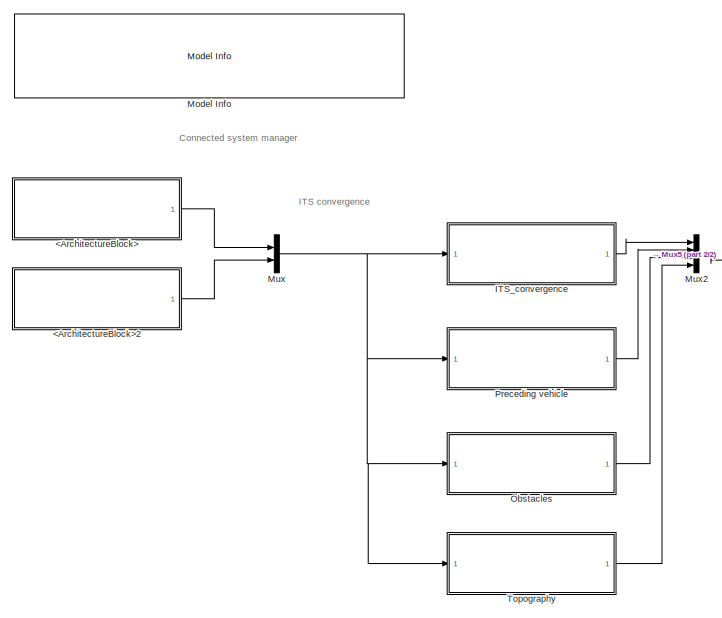
[diagram: root canvas - part 1/2, left side, full height]
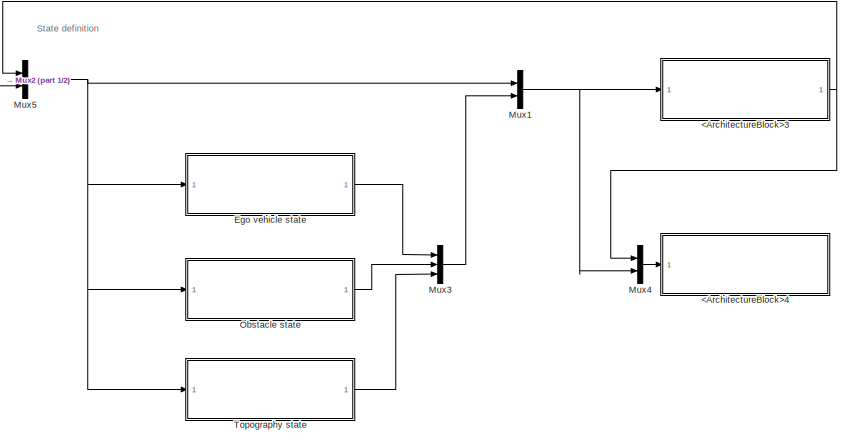
[diagram: root canvas - part 2/2, middle right region]
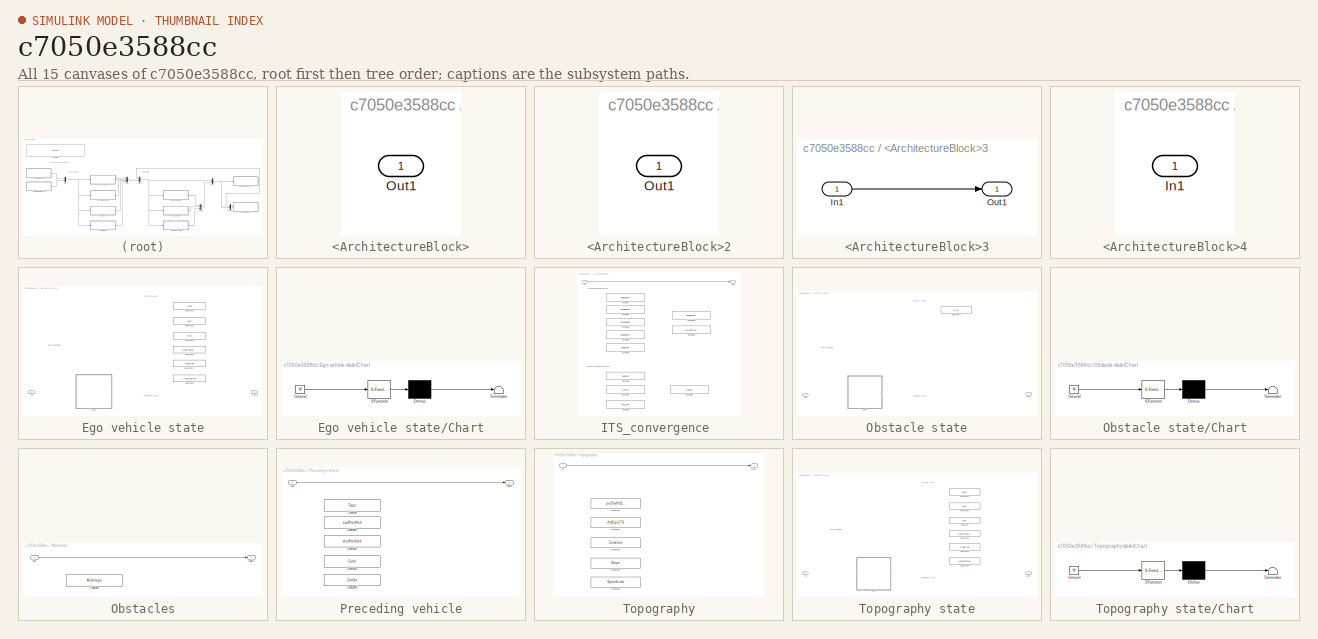
[diagram: thumbnail index - all 15 canvases of the model, root first then tree order]
MODEL slx_c7050e3588cc
KIND model
CONFIG AbsTol = auto
CONFIG EnableMultiTasking = off
CONFIG FixedStep = auto
CONFIG MaxStep = auto
CONFIG MinStep = auto
CONFIG RelTol = 1e-3
CONFIG SampleTimeConstraint = Unconstrained
CONFIG Solver = VariableStepAuto
CONFIG SolverName = VariableStepAuto
CONFIG StartTime = 0.0
CONFIG StopTime = 10.0
BLOCK [SubSystem] <ArchitectureBlock>
  Ports = [0, 1]
  RequestExecContextInheritance = off
  Variant = off
BLOCK [Outport] <ArchitectureBlock>/Out1
  IconDisplay = Port number
BLOCK [SubSystem] <ArchitectureBlock>2
  Ports = [0, 1]
  RequestExecContextInheritance = off
  Variant = off
BLOCK [Outport] <ArchitectureBlock>2/Out1
  IconDisplay = Port number
BLOCK [SubSystem] <ArchitectureBlock>3
  Ports = [1, 1]
  RequestExecContextInheritance = off
  Variant = off
BLOCK [Inport] <ArchitectureBlock>3/In1
  IconDisplay = Port number
BLOCK [Outport] <ArchitectureBlock>3/Out1
  IconDisplay = Port number
BLOCK [SubSystem] <ArchitectureBlock>4
  Ports = [1]
  RequestExecContextInheritance = off
  Variant = off
BLOCK [Inport] <ArchitectureBlock>4/In1
  IconDisplay = Port number
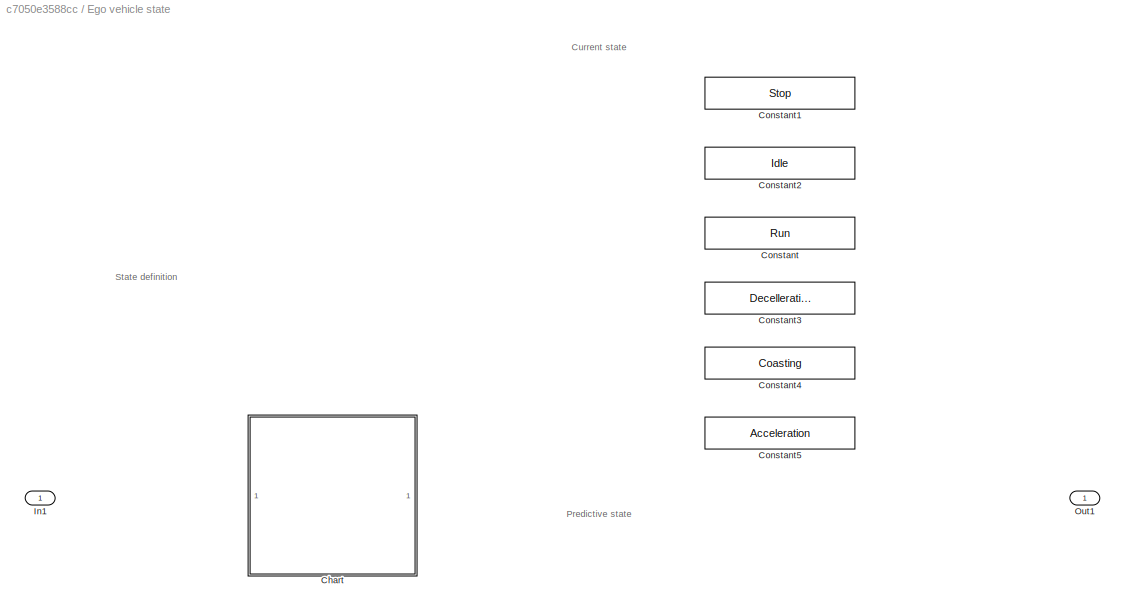
BLOCK [SubSystem] Ego vehicle state
  Ports = [1, 1]
  RequestExecContextInheritance = off
  Variant = off
BLOCK [SubSystem] Ego vehicle state/Chart
  ErrorFcn = Stateflow.Translate.translate
  PermitHierarchicalResolution = ExplicitOnly
  Ports = []
  RequestExecContextInheritance = off
  SFBlockType = Chart
  TreatAsAtomicUnit = on
  Variant = off
BLOCK [Demux] Ego vehicle state/Chart/ Demux 
  Outputs = 1
  Ports = [1, 1]
BLOCK [Ground] Ego vehicle state/Chart/ Ground 
BLOCK [S-Function] Ego vehicle state/Chart/ SFunction 
  EnableBusSupport = off
  FunctionName = sf_sfun
  PortCounts = [1 1]
  Ports = [1, 1]
  SFcnIsStateOwnerBlock = off
  SFunctionDeploymentMode = off
  Tag = Stateflow S-Function Csm_HighLvlArchitecture 3
BLOCK [Terminator] Ego vehicle state/Chart/ Terminator 
BLOCK [Constant] Ego vehicle state/Constant
  Value = Run
BLOCK [Constant] Ego vehicle state/Constant1
  Value = Stop
BLOCK [Constant] Ego vehicle state/Constant2
  Value = Idle
BLOCK [Constant] Ego vehicle state/Constant3
  Value = Decelleration
BLOCK [Constant] Ego vehicle state/Constant4
  Value = Coasting
BLOCK [Constant] Ego vehicle state/Constant5
  Value = Acceleration
BLOCK [Inport] Ego vehicle state/In1
  IconDisplay = Port number
BLOCK [Outport] Ego vehicle state/Out1
  IconDisplay = Port number
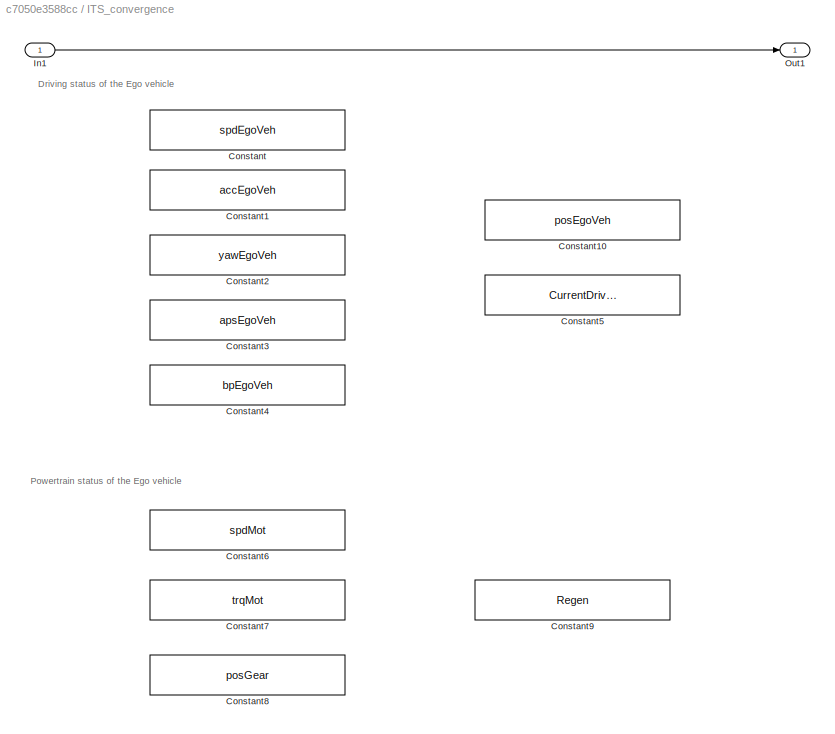
BLOCK [SubSystem] ITS_convergence 
  Ports = [1, 1]
  RequestExecContextInheritance = off
  Variant = off
BLOCK [Constant] ITS_convergence /Constant
  Value = spdEgoVeh
BLOCK [Constant] ITS_convergence /Constant1
  Value = accEgoVeh
BLOCK [Constant] ITS_convergence /Constant10
  Value = posEgoVeh
BLOCK [Constant] ITS_convergence /Constant2
  Value = yawEgoVeh
BLOCK [Constant] ITS_convergence /Constant3
  Value = apsEgoVeh
BLOCK [Constant] ITS_convergence /Constant4
  Value = bpEgoVeh
BLOCK [Constant] ITS_convergence /Constant5
  Value = CurrentDrivingLane
BLOCK [Constant] ITS_convergence /Constant6
  Value = spdMot
BLOCK [Constant] ITS_convergence /Constant7
  Value = trqMot
BLOCK [Constant] ITS_convergence /Constant8
  Value = posGear
BLOCK [Constant] ITS_convergence /Constant9
  Value = Regen
BLOCK [Inport] ITS_convergence /In1
  IconDisplay = Port number
BLOCK [Outport] ITS_convergence /Out1
  IconDisplay = Port number
BLOCK [Reference] Model Info  REF=DX_Lib/Misc. Lib/Model Info
  Ports = []
  SourceBlock = DX_Lib/Misc. Lib/Model Info
  SourceProductName = ACE Lab: DX Blockset
  SourceType = CMBlock
BLOCK [Mux] Mux
  DisplayOption = bar
  Inputs = 2
  Ports = [2, 1]
BLOCK [Mux] Mux1
  DisplayOption = bar
  Inputs = 2
  Ports = [2, 1]
BLOCK [Mux] Mux2
  DisplayOption = bar
  Ports = [4, 1]
BLOCK [Mux] Mux3
  DisplayOption = bar
  Inputs = 3
  Ports = [3, 1]
BLOCK [Mux] Mux4
  DisplayOption = bar
  Inputs = 2
  Ports = [2, 1]
BLOCK [Mux] Mux5
  DisplayOption = bar
  Inputs = 2
  Ports = [2, 1]
BLOCK [SubSystem] Obstacle state
  Ports = [1, 1]
  RequestExecContextInheritance = off
  Variant = off
BLOCK [SubSystem] Obstacle state/Chart
  ErrorFcn = Stateflow.Translate.translate
  PermitHierarchicalResolution = ExplicitOnly
  Ports = []
  RequestExecContextInheritance = off
  SFBlockType = Chart
  TreatAsAtomicUnit = on
  Variant = off
BLOCK [Demux] Obstacle state/Chart/ Demux 
  Outputs = 1
  Ports = [1, 1]
BLOCK [Ground] Obstacle state/Chart/ Ground 
BLOCK [S-Function] Obstacle state/Chart/ SFunction 
  EnableBusSupport = off
  FunctionName = sf_sfun
  PortCounts = [1 1]
  Ports = [1, 1]
  SFcnIsStateOwnerBlock = off
  SFunctionDeploymentMode = off
  Tag = Stateflow S-Function Csm_HighLvlArchitecture 1
BLOCK [Terminator] Obstacle state/Chart/ Terminator 
BLOCK [Constant] Obstacle state/Constant1
  Value = Stop
BLOCK [Inport] Obstacle state/In1
  IconDisplay = Port number
BLOCK [Outport] Obstacle state/Out1
  IconDisplay = Port number
BLOCK [SubSystem] Obstacles
  Ports = [1, 1]
  RequestExecContextInheritance = off
  Variant = off
BLOCK [Constant] Obstacles/Constant
  Value = Mobileye
BLOCK [Inport] Obstacles/In1
  IconDisplay = Port number
BLOCK [Outport] Obstacles/Out1
  IconDisplay = Port number
BLOCK [SubSystem] Preceding vehicle
  Ports = [1, 1]
  RequestExecContextInheritance = off
  Variant = off
BLOCK [Constant] Preceding vehicle/Constant
  Value = Type
BLOCK [Constant] Preceding vehicle/Constant1
  Value = spdPredVeh
BLOCK [Constant] Preceding vehicle/Constant2
  Value = distPredVeh
BLOCK [Constant] Preceding vehicle/Constant3
  Value = CutIn
BLOCK [Constant] Preceding vehicle/Constant4
  Value = CutOut
BLOCK [Inport] Preceding vehicle/In1
  IconDisplay = Port number
BLOCK [Outport] Preceding vehicle/Out1
  IconDisplay = Port number
BLOCK [SubSystem] Topography
  Ports = [1, 1]
  RequestExecContextInheritance = off
  Variant = off
BLOCK [SubSystem] Topography state
  Ports = [1, 1]
  RequestExecContextInheritance = off
  Variant = off
BLOCK [SubSystem] Topography state/Chart
  ErrorFcn = Stateflow.Translate.translate
  PermitHierarchicalResolution = ExplicitOnly
  Ports = []
  RequestExecContextInheritance = off
  SFBlockType = Chart
  TreatAsAtomicUnit = on
  Variant = off
BLOCK [Demux] Topography state/Chart/ Demux 
  Outputs = 1
  Ports = [1, 1]
BLOCK [Ground] Topography state/Chart/ Ground 
BLOCK [S-Function] Topography state/Chart/ SFunction 
  EnableBusSupport = off
  FunctionName = sf_sfun
  PortCounts = [1 1]
  Ports = [1, 1]
  SFcnIsStateOwnerBlock = off
  SFunctionDeploymentMode = off
  Tag = Stateflow S-Function Csm_HighLvlArchitecture 2
BLOCK [Terminator] Topography state/Chart/ Terminator 
BLOCK [Constant] Topography state/Constant
  Value = Run
BLOCK [Constant] Topography state/Constant1
  Value = Stop
BLOCK [Constant] Topography state/Constant2
  Value = Idle
BLOCK [Constant] Topography state/Constant3
  Value = Decelleration
BLOCK [Constant] Topography state/Constant4
  Value = Coasting
BLOCK [Constant] Topography state/Constant5
  Value = Acceleration
BLOCK [Inport] Topography state/In1
  IconDisplay = Port number
BLOCK [Outport] Topography state/Out1
  IconDisplay = Port number
BLOCK [Constant] Topography/Constant1
  Value = posTrafficSignal
BLOCK [Constant] Topography/Constant2
  Value = distEgo2TS
BLOCK [Constant] Topography/Constant3
  Value = Curvature
BLOCK [Constant] Topography/Constant4
  Value = Slope
BLOCK [Constant] Topography/Constant5
  Value = SpeedLimit
BLOCK [Inport] Topography/In1
  IconDisplay = Port number
BLOCK [Outport] Topography/Out1
  IconDisplay = Port number
ANNOTATION (root): Connected system manager
ANNOTATION (root): ITS convergence
ANNOTATION (root): State definition
ANNOTATION Ego vehicle state: Current state
ANNOTATION Ego vehicle state: Predictive state
ANNOTATION Ego vehicle state: State definition
ANNOTATION ITS_convergence : Driving status of the Ego vehicle
ANNOTATION ITS_convergence : Powertrain status of the Ego vehicle
ANNOTATION Obstacle state: Current state
ANNOTATION Obstacle state: Predictive state
ANNOTATION Obstacle state: State definition
ANNOTATION Topography state: Current state
ANNOTATION Topography state: Predictive state
ANNOTATION Topography state: State definition
LINE <ArchitectureBlock>2:1 -> Mux:2
LINE <ArchitectureBlock>3/In1:1 -> <ArchitectureBlock>3/Out1:1
NET <ArchitectureBlock>3:1 -> Mux4:1, Mux5:1
LINE <ArchitectureBlock>:1 -> Mux:1
LINE Ego vehicle state:1 -> Mux3:1
LINE ITS_convergence /In1:1 -> ITS_convergence /Out1:1
LINE ITS_convergence :1 -> Mux2:1
NET Mux1:1 -> <ArchitectureBlock>3:1, Mux4:2
LINE Mux2:1 -> Mux5:2
LINE Mux3:1 -> Mux1:2
LINE Mux4:1 -> <ArchitectureBlock>4:1
NET Mux5:1 -> Ego vehicle state:1, Mux1:1, Obstacle state:1, Topography state:1
NET Mux:1 -> ITS_convergence :1, Obstacles:1, Preceding vehicle:1, Topography:1
LINE Obstacle state:1 -> Mux3:2
LINE Obstacles/In1:1 -> Obstacles/Out1:1
LINE Obstacles:1 -> Mux2:3
LINE Preceding vehicle/In1:1 -> Preceding vehicle/Out1:1
LINE Preceding vehicle:1 -> Mux2:2
LINE Topography state:1 -> Mux3:3
LINE Topography/In1:1 -> Topography/Out1:1
LINE Topography:1 -> Mux2:4
note: NET lines group one-source signal fan-out (src -> all destinations, sorted); 1:1 wires keep LINE
CHART Obstacle state/Chart states=0 transitions=0
CHART Topography state/Chart states=0 transitions=0
CHART Ego vehicle state/Chart states=0 transitions=0
